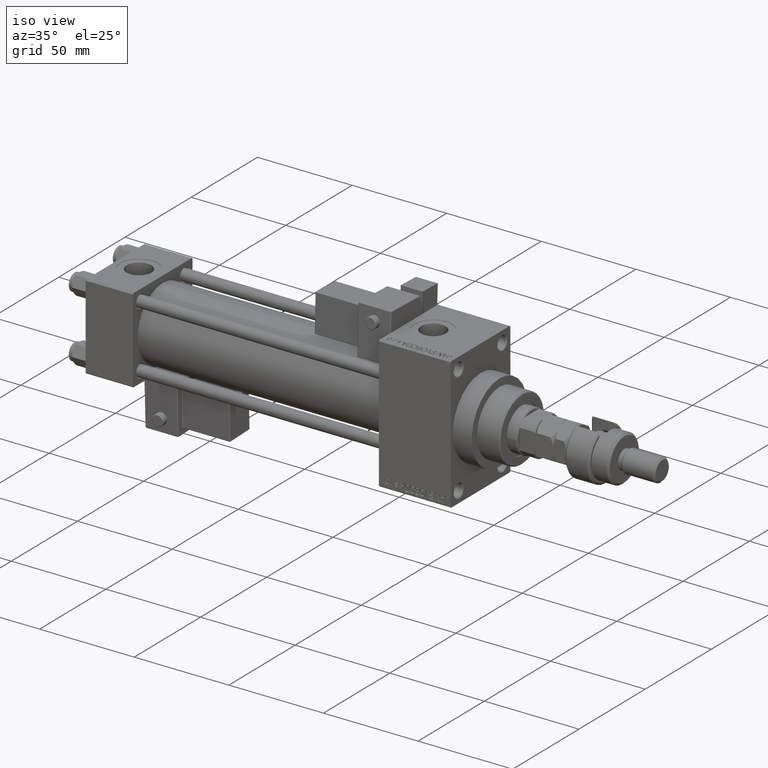
[diagram: clean part render]
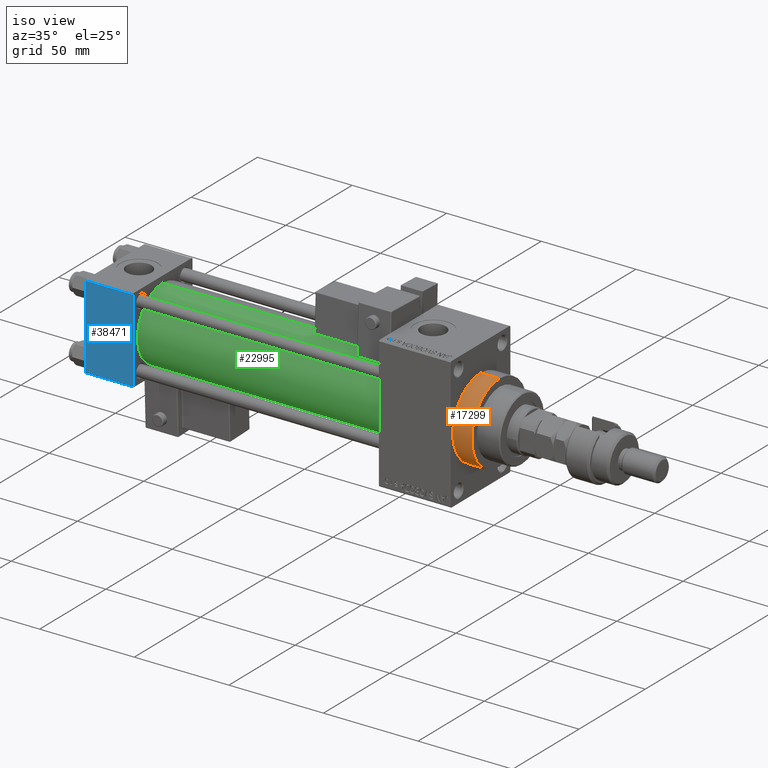
[diagram: same view with three faces highlighted in distinct colors, each labeled with its STEP entity id]
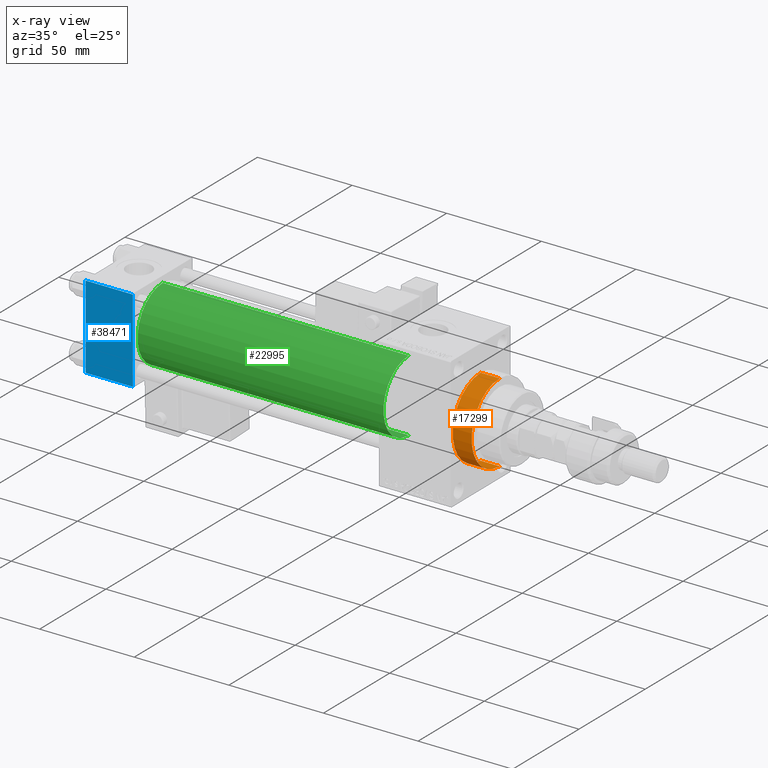
[diagram: x-ray of the same camera — body ghosted, the three highlighted faces saturated]
A machine part, iso view with three faces highlighted in distinct colors.
The next image is the same camera in x-ray (body ghosted, the three faces saturated) — at least one of them is partly hidden behind the body in this view.
Their STEP definitions:

[orange] entity #17299 — the highlighted cylindrical surface (partial cylindrical patch) has radius 21 mm, axis along (-1, -0, -0).
#1742 = CARTESIAN_POINT ( 'NONE',  ( 203.0000000000000000, 0.000000000000000000, 0.000000000000000000 ) ) ;
#2472 = LINE ( 'NONE', #36984, #40518 ) ;
#2707 = ORIENTED_EDGE ( 'NONE', *, *, #44931, .F. ) ;
#4031 = DIRECTION ( 'NONE',  ( 1.000000000000000000, 0.000000000000000000, 0.000000000000000000 ) ) ;
#8702 = DIRECTION ( 'NONE',  ( -1.000000000000000000, -0.000000000000000000, -0.000000000000000000 ) ) ;
#10818 = VERTEX_POINT ( 'NONE', #32853 ) ;
#10950 = CIRCLE ( 'NONE', #16192, 21.00000000000000000 ) ;
#11151 = VERTEX_POINT ( 'NONE', #37629 ) ;
#11641 = ORIENTED_EDGE ( 'NONE', *, *, #28769, .F. ) ;
#12632 = EDGE_LOOP ( 'NONE', ( #11641, #2707, #33759, #31866 ) ) ;
#16192 = AXIS2_PLACEMENT_3D ( 'NONE', #1742, #39850, #34908 ) ;
#17194 = CARTESIAN_POINT ( 'NONE',  ( 203.0000000000000000, 0.000000000000000000, 0.000000000000000000 ) ) ;
#17299 = ADVANCED_FACE ( 'NONE', ( #34205 ), #50651, .T. ) ;
#20536 = AXIS2_PLACEMENT_3D ( 'NONE', #28703, #4031, #37202 ) ;
#25148 = EDGE_CURVE ( 'NONE', #39234, #32613, #30936, .T. ) ;
#26233 = CARTESIAN_POINT ( 'NONE',  ( 193.0000000000000000, 0.000000000000000000, 21.00000000000000000 ) ) ;
#28703 = CARTESIAN_POINT ( 'NONE',  ( 193.0000000000000000, 0.000000000000000000, 0.000000000000000000 ) ) ;
#28769 = EDGE_CURVE ( 'NONE', #11151, #10818, #2472, .T. ) ;
#30677 = CARTESIAN_POINT ( 'NONE',  ( 203.0000000000000000, 0.000000000000000000, 21.00000000000000000 ) ) ;
#30936 = LINE ( 'NONE', #35047, #31692 ) ;
#31692 = VECTOR ( 'NONE', #51769, 1000.000000000000000 ) ;
#31866 = ORIENTED_EDGE ( 'NONE', *, *, #44373, .T. ) ;
#32613 = VERTEX_POINT ( 'NONE', #26233 ) ;
#32853 = CARTESIAN_POINT ( 'NONE',  ( 193.0000000000000000, 2.571758278209441661E-15, -21.00000000000000000 ) ) ;
#33759 = ORIENTED_EDGE ( 'NONE', *, *, #25148, .T. ) ;
#34205 = FACE_OUTER_BOUND ( 'NONE', #12632, .T. ) ;
#34908 = DIRECTION ( 'NONE',  ( 0.000000000000000000, 0.000000000000000000, -1.000000000000000000 ) ) ;
#35047 = CARTESIAN_POINT ( 'NONE',  ( 203.0000000000000000, 0.000000000000000000, 21.00000000000000000 ) ) ;
#36984 = CARTESIAN_POINT ( 'NONE',  ( 203.0000000000000000, 2.571758278209441661E-15, -21.00000000000000000 ) ) ;
#37168 = CIRCLE ( 'NONE', #20536, 21.00000000000000000 ) ;
#37202 = DIRECTION ( 'NONE',  ( 0.000000000000000000, 0.000000000000000000, -1.000000000000000000 ) ) ;
#37629 = CARTESIAN_POINT ( 'NONE',  ( 203.0000000000000000, 2.571758278209441661E-15, -21.00000000000000000 ) ) ;
#39234 = VERTEX_POINT ( 'NONE', #30677 ) ;
#39850 = DIRECTION ( 'NONE',  ( 1.000000000000000000, 0.000000000000000000, 0.000000000000000000 ) ) ;
#40518 = VECTOR ( 'NONE', #53168, 1000.000000000000000 ) ;
#44373 = EDGE_CURVE ( 'NONE', #32613, #10818, #37168, .T. ) ;
#44514 = AXIS2_PLACEMENT_3D ( 'NONE', #17194, #8702, #50922 ) ;
#44931 = EDGE_CURVE ( 'NONE', #39234, #11151, #10950, .T. ) ;
#50651 = CYLINDRICAL_SURFACE ( 'NONE', #44514, 21.00000000000000000 ) ;
#50922 = DIRECTION ( 'NONE',  ( 0.000000000000000000, 0.000000000000000000, 1.000000000000000000 ) ) ;
#51769 = DIRECTION ( 'NONE',  ( -1.000000000000000000, -0.000000000000000000, -0.000000000000000000 ) ) ;
#53168 = DIRECTION ( 'NONE',  ( -1.000000000000000000, -0.000000000000000000, -0.000000000000000000 ) ) ;

[blue] entity #38471 — the highlighted planar face has unit normal (0, 1, 0).
#754 = DIRECTION ( 'NONE',  ( 0.000000000000000000, -0.000000000000000000, 1.000000000000000000 ) ) ;
#1569 = FACE_OUTER_BOUND ( 'NONE', #35546, .T. ) ;
#2931 = DIRECTION ( 'NONE',  ( 0.000000000000000000, 0.000000000000000000, -1.000000000000000000 ) ) ;
#3681 = VERTEX_POINT ( 'NONE', #32899 ) ;
#5308 = CARTESIAN_POINT ( 'NONE',  ( 25.00000000000000000, -22.50000000000000000, -21.99999999999998579 ) ) ;
#9795 = CARTESIAN_POINT ( 'NONE',  ( 25.00000000000000000, -22.50000000000000000, 22.00000000000000000 ) ) ;
#11839 = VERTEX_POINT ( 'NONE', #21588 ) ;
#12861 = EDGE_CURVE ( 'NONE', #52470, #30653, #26802, .T. ) ;
#14214 = ORIENTED_EDGE ( 'NONE', *, *, #30606, .T. ) ;
#16436 = VECTOR ( 'NONE', #52026, 1000.000000000000000 ) ;
#21588 = CARTESIAN_POINT ( 'NONE',  ( 25.00000000000000000, -22.50000000000000000, -21.99999999999997158 ) ) ;
#22348 = CARTESIAN_POINT ( 'NONE',  ( 25.00000000000000000, -22.50000000000000000, 22.00000000000000000 ) ) ;
#22768 = DIRECTION ( 'NONE',  ( 0.000000000000000000, 0.000000000000000000, -1.000000000000000000 ) ) ;
#22993 = EDGE_CURVE ( 'NONE', #52470, #11839, #24023, .T. ) ;
#23046 = VECTOR ( 'NONE', #51910, 1000.000000000000000 ) ;
#24023 = LINE ( 'NONE', #44595, #35059 ) ;
#26802 = LINE ( 'NONE', #9795, #16436 ) ;
#26959 = LINE ( 'NONE', #5308, #23046 ) ;
#28340 = AXIS2_PLACEMENT_3D ( 'NONE', #34728, #47339, #754 ) ;
#30524 = CARTESIAN_POINT ( 'NONE',  ( 0.000000000000000000, -22.50000000000000000, 22.00000000000000000 ) ) ;
#30606 = EDGE_CURVE ( 'NONE', #3681, #11839, #26959, .T. ) ;
#30653 = VERTEX_POINT ( 'NONE', #30524 ) ;
#32899 = CARTESIAN_POINT ( 'NONE',  ( 0.000000000000000000, -22.50000000000000000, -21.99999999999997158 ) ) ;
#34728 = CARTESIAN_POINT ( 'NONE',  ( 25.00000000000000000, -22.50000000000000000, 22.50000000000000000 ) ) ;
#35059 = VECTOR ( 'NONE', #2931, 1000.000000000000000 ) ;
#35546 = EDGE_LOOP ( 'NONE', ( #49011, #14214, #41109, #39979 ) ) ;
#36146 = EDGE_CURVE ( 'NONE', #30653, #3681, #51552, .T. ) ;
#38471 = ADVANCED_FACE ( 'NONE', ( #1569 ), #47075, .F. ) ;
#39979 = ORIENTED_EDGE ( 'NONE', *, *, #12861, .T. ) ;
#41109 = ORIENTED_EDGE ( 'NONE', *, *, #22993, .F. ) ;
#43609 = CARTESIAN_POINT ( 'NONE',  ( 0.000000000000000000, -22.50000000000000000, 22.50000000000000000 ) ) ;
#43958 = VECTOR ( 'NONE', #22768, 1000.000000000000000 ) ;
#44595 = CARTESIAN_POINT ( 'NONE',  ( 25.00000000000000000, -22.50000000000000000, 22.50000000000000000 ) ) ;
#47075 = PLANE ( 'NONE',  #28340 ) ;
#47339 = DIRECTION ( 'NONE',  ( -0.000000000000000000, 1.000000000000000000, 0.000000000000000000 ) ) ;
#49011 = ORIENTED_EDGE ( 'NONE', *, *, #36146, .T. ) ;
#51552 = LINE ( 'NONE', #43609, #43958 ) ;
#51910 = DIRECTION ( 'NONE',  ( 1.000000000000000000, 0.000000000000000000, 0.000000000000000000 ) ) ;
#52026 = DIRECTION ( 'NONE',  ( -1.000000000000000000, 0.000000000000000000, 0.000000000000000000 ) ) ;
#52470 = VERTEX_POINT ( 'NONE', #22348 ) ;

[green] entity #22995 — the highlighted cylindrical surface (partial cylindrical patch) has radius 19 mm, axis along (-1, -0, -0).
#537 = VECTOR ( 'NONE', #40776, 1000.000000000000000 ) ;
#3083 = CARTESIAN_POINT ( 'NONE',  ( 155.0000000000000000, -2.602085213965210642E-15, 19.00000000000000000 ) ) ;
#3790 = AXIS2_PLACEMENT_3D ( 'NONE', #20328, #37057, #33201 ) ;
#6528 = CARTESIAN_POINT ( 'NONE',  ( 24.99999999999999289, -2.752562955852396712E-16, -19.00000000000000000 ) ) ;
#7614 = EDGE_CURVE ( 'NONE', #32196, #40697, #13400, .T. ) ;
#8930 = EDGE_LOOP ( 'NONE', ( #34799, #22548, #17900, #48125 ) ) ;
#13400 = CIRCLE ( 'NONE', #3790, 19.00000000000000000 ) ;
#13861 = VERTEX_POINT ( 'NONE', #41466 ) ;
#14385 = EDGE_CURVE ( 'NONE', #13861, #35096, #45256, .T. ) ;
#15520 = CARTESIAN_POINT ( 'NONE',  ( 155.0000000000000000, -2.602085213965210642E-15, 0.000000000000000000 ) ) ;
#17900 = ORIENTED_EDGE ( 'NONE', *, *, #35057, .T. ) ;
#19636 = FACE_OUTER_BOUND ( 'NONE', #8930, .T. ) ;
#20328 = CARTESIAN_POINT ( 'NONE',  ( 24.99999999999999289, -2.602085213965210642E-15, 0.000000000000000000 ) ) ;
#20559 = CARTESIAN_POINT ( 'NONE',  ( 24.99999999999999289, -2.602085213965210642E-15, 19.00000000000000000 ) ) ;
#21498 = CARTESIAN_POINT ( 'NONE',  ( 155.0000000000000000, -2.602085213965210642E-15, 0.000000000000000000 ) ) ;
#22548 = ORIENTED_EDGE ( 'NONE', *, *, #14385, .F. ) ;
#22811 = AXIS2_PLACEMENT_3D ( 'NONE', #15520, #32242, #44871 ) ;
#22995 = ADVANCED_FACE ( 'NONE', ( #19636 ), #36359, .T. ) ;
#28604 = AXIS2_PLACEMENT_3D ( 'NONE', #21498, #46462, #33036 ) ;
#32196 = VERTEX_POINT ( 'NONE', #20559 ) ;
#32242 = DIRECTION ( 'NONE',  ( -1.000000000000000000, -0.000000000000000000, -0.000000000000000000 ) ) ;
#33036 = DIRECTION ( 'NONE',  ( 0.000000000000000000, 0.000000000000000000, -1.000000000000000000 ) ) ;
#33201 = DIRECTION ( 'NONE',  ( 0.000000000000000000, 0.000000000000000000, 1.000000000000000000 ) ) ;
#34799 = ORIENTED_EDGE ( 'NONE', *, *, #46659, .F. ) ;
#35057 = EDGE_CURVE ( 'NONE', #13861, #32196, #48859, .T. ) ;
#35096 = VERTEX_POINT ( 'NONE', #37049 ) ;
#36359 = CYLINDRICAL_SURFACE ( 'NONE', #22811, 19.00000000000000000 ) ;
#36513 = DIRECTION ( 'NONE',  ( -1.000000000000000000, -0.000000000000000000, -0.000000000000000000 ) ) ;
#37049 = CARTESIAN_POINT ( 'NONE',  ( 155.0000000000000000, -2.752562955852396712E-16, -19.00000000000000000 ) ) ;
#37057 = DIRECTION ( 'NONE',  ( 1.000000000000000000, -0.000000000000000000, 0.000000000000000000 ) ) ;
#40697 = VERTEX_POINT ( 'NONE', #6528 ) ;
#40776 = DIRECTION ( 'NONE',  ( -1.000000000000000000, -0.000000000000000000, -0.000000000000000000 ) ) ;
#41466 = CARTESIAN_POINT ( 'NONE',  ( 155.0000000000000000, -2.602085213965210642E-15, 19.00000000000000000 ) ) ;
#44871 = DIRECTION ( 'NONE',  ( 0.000000000000000000, 0.000000000000000000, 1.000000000000000000 ) ) ;
#45256 = CIRCLE ( 'NONE', #28604, 19.00000000000000000 ) ;
#46462 = DIRECTION ( 'NONE',  ( 1.000000000000000000, 0.000000000000000000, 0.000000000000000000 ) ) ;
#46659 = EDGE_CURVE ( 'NONE', #35096, #40697, #49525, .T. ) ;
#48125 = ORIENTED_EDGE ( 'NONE', *, *, #7614, .T. ) ;
#48859 = LINE ( 'NONE', #3083, #50910 ) ;
#49525 = LINE ( 'NONE', #49791, #537 ) ;
#49791 = CARTESIAN_POINT ( 'NONE',  ( 155.0000000000000000, -2.752562955852396712E-16, -19.00000000000000000 ) ) ;
#50910 = VECTOR ( 'NONE', #36513, 1000.000000000000000 ) ;